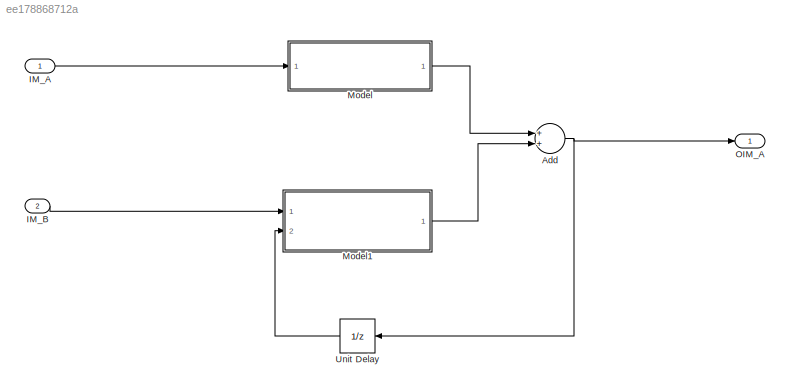
MODEL slx_ee178868712a
KIND model
CONFIG AbsTol = auto
CONFIG EnableMultiTasking = off
CONFIG FixedStep = auto
CONFIG MaxStep = auto
CONFIG MinStep = auto
CONFIG RelTol = 1e-3
CONFIG SampleTimeConstraint = Unconstrained
CONFIG Solver = FixedStepDiscrete
CONFIG SolverName = FixedStepDiscrete
CONFIG StartTime = 0.0
CONFIG StopTime = 10.0
BLOCK [Sum] Add
  InputSameDT = off
  OutDataTypeStr = Inherit: Inherit via internal rule
  Ports = [2, 1]
  SaturateOnIntegerOverflow = off
BLOCK [Inport] IM_A
  IconDisplay = Port number
BLOCK [Inport] IM_B
  IconDisplay = Port number
  Port = 2
BLOCK [ModelReference] Model
  ModelNameDialog = test_terminate.slx
  ModelReferenceVersion = 1.6
  Ports = [1, 1]
BLOCK [ModelReference] Model1
  ModelNameDialog = test_Addiction.slx
  ModelReferenceVersion = 1.6
  Ports = [2, 1]
BLOCK [Outport] OIM_A
  IconDisplay = Port number
BLOCK [UnitDelay] Unit Delay
  InputProcessing = Elements as channels (sample based)
  SampleTime = -1
NET Add:1 -> OIM_A:1, Unit Delay:1
LINE IM_A:1 -> Model:1
LINE IM_B:1 -> Model1:1
LINE Model1:1 -> Add:2
LINE Model:1 -> Add:1
LINE Unit Delay:1 -> Model1:2
note: NET lines group one-source signal fan-out (src -> all destinations, sorted); 1:1 wires keep LINE
